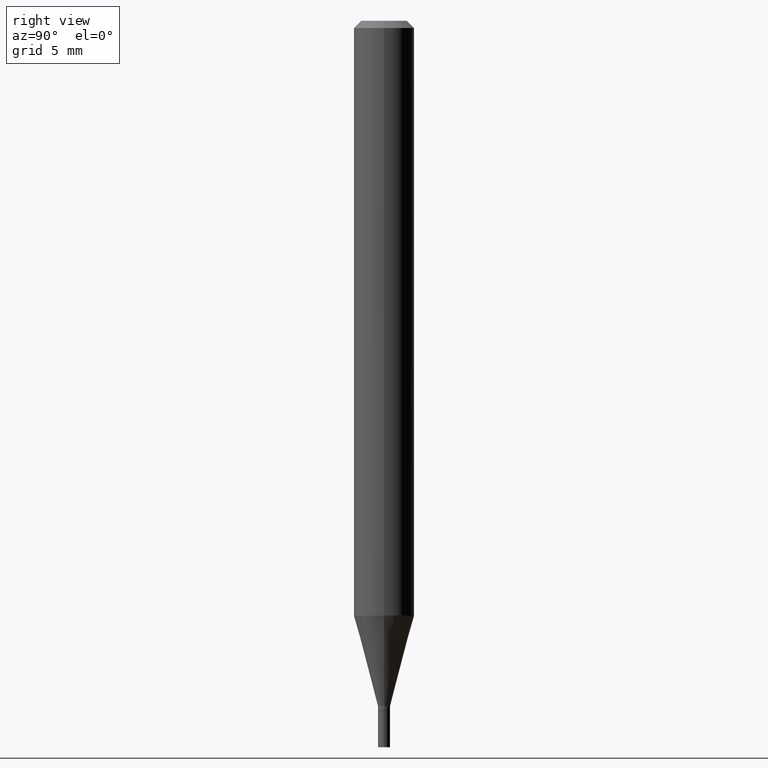
[diagram: clean part render]
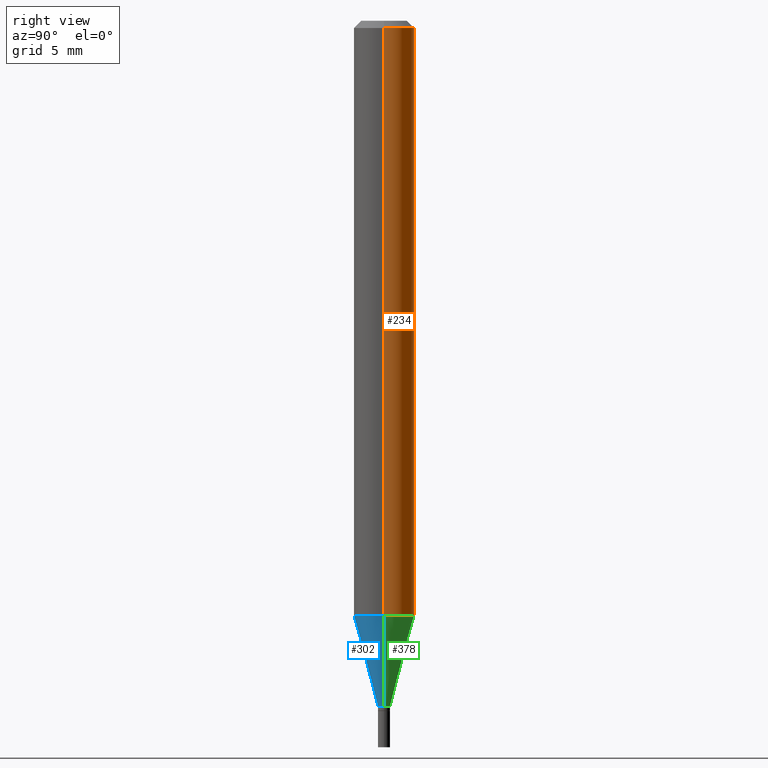
[diagram: same view with three faces highlighted in distinct colors, each labeled with its STEP entity id]
A machine part, right view with three faces highlighted in distinct colors.
Their STEP definitions:

[orange] entity #234 — the highlighted cylindrical surface (edge-blend (fillet) strip) has radius 1.5875 mm, axis along (-0, 0, 1).
#19 = ORIENTED_EDGE ( 'NONE', *, *, #243, .F. ) ;
#26 = LINE ( 'NONE', #126, #421 ) ;
#34 = DIRECTION ( 'NONE',  ( 1.000000000000000000, -6.982962677686266711E-15, 4.876176775795935793E-29 ) ) ;
#43 = DIRECTION ( 'NONE',  ( 1.000000000000000000, -6.982962677686262766E-15, 0.000000000000000000 ) ) ;
#47 = FACE_OUTER_BOUND ( 'NONE', #96, .T. ) ;
#51 = CARTESIAN_POINT ( 'NONE',  ( -0.06250000000000000000, -1.726560303666755986E-15, -0.01499999999999999944 ) ) ;
#68 = CARTESIAN_POINT ( 'NONE',  ( -0.06250000000000001388, -3.844837597100926719E-15, -1.228397459621556109 ) ) ;
#76 = VERTEX_POINT ( 'NONE', #51 ) ;
#77 = CYLINDRICAL_SURFACE ( 'NONE', #93, 0.06250000000000000000 ) ;
#80 = CIRCLE ( 'NONE', #397, 0.06250000000000000000 ) ;
#86 = ORIENTED_EDGE ( 'NONE', *, *, #188, .T. ) ;
#93 = AXIS2_PLACEMENT_3D ( 'NONE', #343, #213, #34 ) ;
#96 = EDGE_LOOP ( 'NONE', ( #334, #86, #19, #392 ) ) ;
#105 = DIRECTION ( 'NONE',  ( 1.000000000000000000, -6.982962677686266711E-15, 0.000000000000000000 ) ) ;
#126 = CARTESIAN_POINT ( 'NONE',  ( 0.06250000000000000000, -4.364351673553916694E-16, 3.047610484872459871E-30 ) ) ;
#132 = CARTESIAN_POINT ( 'NONE',  ( 3.668203209277705088E-31, -5.237222008264718399E-17, -0.01499999999999999944 ) ) ;
#138 = DIRECTION ( 'NONE',  ( -2.445468806185136877E-29, 3.491481338843145188E-15, 1.000000000000000000 ) ) ;
#161 = AXIS2_PLACEMENT_3D ( 'NONE', #254, #401, #43 ) ;
#188 = EDGE_CURVE ( 'NONE', #258, #76, #370, .T. ) ;
#213 = DIRECTION ( 'NONE',  ( -2.445468806185136597E-29, 3.491481338843145583E-15, 1.000000000000000000 ) ) ;
#234 = ADVANCED_FACE ( 'NONE', ( #47 ), #77, .T. ) ;
#243 = EDGE_CURVE ( 'NONE', #345, #76, #80, .T. ) ;
#254 = CARTESIAN_POINT ( 'NONE',  ( 3.004007669101581496E-29, -4.288926806950990124E-15, -1.228397459621556109 ) ) ;
#255 = EDGE_CURVE ( 'NONE', #338, #258, #379, .T. ) ;
#258 = VERTEX_POINT ( 'NONE', #68 ) ;
#323 = CARTESIAN_POINT ( 'NONE',  ( 0.06250000000000000000, -4.888073874380388472E-16, -0.01499999999999999944 ) ) ;
#334 = ORIENTED_EDGE ( 'NONE', *, *, #255, .T. ) ;
#338 = VERTEX_POINT ( 'NONE', #352 ) ;
#341 = VECTOR ( 'NONE', #138, 39.37007874015748143 ) ;
#343 = CARTESIAN_POINT ( 'NONE',  ( 0.000000000000000000, 0.000000000000000000, 0.000000000000000000 ) ) ;
#345 = VERTEX_POINT ( 'NONE', #323 ) ;
#352 = CARTESIAN_POINT ( 'NONE',  ( 0.06250000000000001388, -4.725361974306381794E-15, -1.228397459621556109 ) ) ;
#355 = DIRECTION ( 'NONE',  ( -2.445468806185136877E-29, 3.491481338843145188E-15, 1.000000000000000000 ) ) ;
#370 = LINE ( 'NONE', #435, #341 ) ;
#379 = CIRCLE ( 'NONE', #161, 0.06250000000000000000 ) ;
#381 = EDGE_CURVE ( 'NONE', #338, #345, #26, .T. ) ;
#392 = ORIENTED_EDGE ( 'NONE', *, *, #381, .F. ) ;
#397 = AXIS2_PLACEMENT_3D ( 'NONE', #132, #405, #105 ) ;
#401 = DIRECTION ( 'NONE',  ( -2.445468806185136597E-29, 3.491481338843145583E-15, 1.000000000000000000 ) ) ;
#405 = DIRECTION ( 'NONE',  ( -2.445468806185136597E-29, 3.491481338843145583E-15, 1.000000000000000000 ) ) ;
#421 = VECTOR ( 'NONE', #355, 39.37007874015748143 ) ;
#435 = CARTESIAN_POINT ( 'NONE',  ( -0.06250000000000000000, 4.440892098500626162E-16, -3.074334431409316114E-30 ) ) ;

[blue] entity #302 — the highlighted conical surface has half-angle 15 deg.
#17 = EDGE_CURVE ( 'NONE', #154, #258, #155, .T. ) ;
#55 = DIRECTION ( 'NONE',  ( -2.445468806185136597E-29, 3.491481338843145583E-15, 1.000000000000000000 ) ) ;
#68 = CARTESIAN_POINT ( 'NONE',  ( -0.06250000000000001388, -3.844837597100926719E-15, -1.228397459621556109 ) ) ;
#73 = CARTESIAN_POINT ( 'NONE',  ( 3.460338360751968441E-29, -4.940446094463050737E-15, -1.415000000000000036 ) ) ;
#92 = CARTESIAN_POINT ( 'NONE',  ( 3.004007669101581496E-29, -4.288926806950990124E-15, -1.228397459621556109 ) ) ;
#115 = AXIS2_PLACEMENT_3D ( 'NONE', #92, #457, #124 ) ;
#124 = DIRECTION ( 'NONE',  ( 1.000000000000000000, -6.982962677686262766E-15, 0.000000000000000000 ) ) ;
#134 = EDGE_LOOP ( 'NONE', ( #273, #250, #199, #207 ) ) ;
#141 = AXIS2_PLACEMENT_3D ( 'NONE', #246, #391, #195 ) ;
#145 = CARTESIAN_POINT ( 'NONE',  ( -0.01249999999999992437, -4.348232924796983019E-15, -1.415000000000000036 ) ) ;
#149 = VERTEX_POINT ( 'NONE', #339 ) ;
#154 = VERTEX_POINT ( 'NONE', #145 ) ;
#155 = LINE ( 'NONE', #385, #299 ) ;
#157 = CIRCLE ( 'NONE', #115, 0.06250000000000000000 ) ;
#159 = DIRECTION ( 'NONE',  ( -0.2588190451025211281, 5.211531920934548675E-15, 0.9659258262890682012 ) ) ;
#195 = DIRECTION ( 'NONE',  ( 1.000000000000000000, -6.982962677686258822E-15, 0.000000000000000000 ) ) ;
#199 = ORIENTED_EDGE ( 'NONE', *, *, #316, .T. ) ;
#207 = ORIENTED_EDGE ( 'NONE', *, *, #417, .F. ) ;
#216 = LINE ( 'NONE', #438, #330 ) ;
#227 = CIRCLE ( 'NONE', #141, 0.01249999999999992437 ) ;
#246 = CARTESIAN_POINT ( 'NONE',  ( 3.460338360751968441E-29, -4.940446094463050737E-15, -1.415000000000000036 ) ) ;
#250 = ORIENTED_EDGE ( 'NONE', *, *, #450, .T. ) ;
#258 = VERTEX_POINT ( 'NONE', #68 ) ;
#273 = ORIENTED_EDGE ( 'NONE', *, *, #17, .F. ) ;
#289 = AXIS2_PLACEMENT_3D ( 'NONE', #73, #55, #318 ) ;
#297 = FACE_OUTER_BOUND ( 'NONE', #134, .T. ) ;
#299 = VECTOR ( 'NONE', #159, 39.37007874015748143 ) ;
#302 = ADVANCED_FACE ( 'NONE', ( #297 ), #403, .T. ) ;
#316 = EDGE_CURVE ( 'NONE', #149, #338, #216, .T. ) ;
#318 = DIRECTION ( 'NONE',  ( 1.000000000000000000, -6.982962677686258822E-15, 0.000000000000000000 ) ) ;
#330 = VECTOR ( 'NONE', #356, 39.37007874015748143 ) ;
#338 = VERTEX_POINT ( 'NONE', #352 ) ;
#339 = CARTESIAN_POINT ( 'NONE',  ( 0.01249999999999992437, -5.027733127934128282E-15, -1.415000000000000036 ) ) ;
#352 = CARTESIAN_POINT ( 'NONE',  ( 0.06250000000000001388, -4.725361974306381794E-15, -1.228397459621556109 ) ) ;
#356 = DIRECTION ( 'NONE',  ( 0.2588190451025211281, 1.565188264969623940E-15, 0.9659258262890682012 ) ) ;
#385 = CARTESIAN_POINT ( 'NONE',  ( -0.01249999999999992437, -4.851628252493038529E-15, -1.415000000000000036 ) ) ;
#391 = DIRECTION ( 'NONE',  ( -2.445468806185136597E-29, 3.491481338843145583E-15, 1.000000000000000000 ) ) ;
#403 = CONICAL_SURFACE ( 'NONE', #289, 0.01249999999999992437, 0.2617993877991497964 ) ;
#417 = EDGE_CURVE ( 'NONE', #258, #338, #157, .T. ) ;
#438 = CARTESIAN_POINT ( 'NONE',  ( 0.01249999999999992437, -5.027733127934128282E-15, -1.415000000000000036 ) ) ;
#450 = EDGE_CURVE ( 'NONE', #154, #149, #227, .T. ) ;
#457 = DIRECTION ( 'NONE',  ( -2.445468806185136597E-29, 3.491481338843145583E-15, 1.000000000000000000 ) ) ;

[green] entity #378 — the highlighted conical surface has half-angle 15 deg.
#6 = EDGE_LOOP ( 'NONE', ( #271, #164, #304, #22 ) ) ;
#7 = DIRECTION ( 'NONE',  ( 1.000000000000000000, -6.982962677686258822E-15, 0.000000000000000000 ) ) ;
#17 = EDGE_CURVE ( 'NONE', #154, #258, #155, .T. ) ;
#22 = ORIENTED_EDGE ( 'NONE', *, *, #316, .F. ) ;
#23 = FACE_OUTER_BOUND ( 'NONE', #6, .T. ) ;
#25 = CIRCLE ( 'NONE', #192, 0.01249999999999992437 ) ;
#43 = DIRECTION ( 'NONE',  ( 1.000000000000000000, -6.982962677686262766E-15, 0.000000000000000000 ) ) ;
#56 = DIRECTION ( 'NONE',  ( -2.445468806185136597E-29, 3.491481338843145583E-15, 1.000000000000000000 ) ) ;
#68 = CARTESIAN_POINT ( 'NONE',  ( -0.06250000000000001388, -3.844837597100926719E-15, -1.228397459621556109 ) ) ;
#145 = CARTESIAN_POINT ( 'NONE',  ( -0.01249999999999992437, -4.348232924796983019E-15, -1.415000000000000036 ) ) ;
#149 = VERTEX_POINT ( 'NONE', #339 ) ;
#154 = VERTEX_POINT ( 'NONE', #145 ) ;
#155 = LINE ( 'NONE', #385, #299 ) ;
#159 = DIRECTION ( 'NONE',  ( -0.2588190451025211281, 5.211531920934548675E-15, 0.9659258262890682012 ) ) ;
#161 = AXIS2_PLACEMENT_3D ( 'NONE', #254, #401, #43 ) ;
#162 = EDGE_CURVE ( 'NONE', #149, #154, #25, .T. ) ;
#164 = ORIENTED_EDGE ( 'NONE', *, *, #17, .T. ) ;
#179 = CARTESIAN_POINT ( 'NONE',  ( 3.460338360751968441E-29, -4.940446094463050737E-15, -1.415000000000000036 ) ) ;
#190 = DIRECTION ( 'NONE',  ( 1.000000000000000000, -6.982962677686258822E-15, 0.000000000000000000 ) ) ;
#192 = AXIS2_PLACEMENT_3D ( 'NONE', #179, #331, #7 ) ;
#216 = LINE ( 'NONE', #438, #330 ) ;
#254 = CARTESIAN_POINT ( 'NONE',  ( 3.004007669101581496E-29, -4.288926806950990124E-15, -1.228397459621556109 ) ) ;
#255 = EDGE_CURVE ( 'NONE', #338, #258, #379, .T. ) ;
#257 = AXIS2_PLACEMENT_3D ( 'NONE', #386, #56, #190 ) ;
#258 = VERTEX_POINT ( 'NONE', #68 ) ;
#271 = ORIENTED_EDGE ( 'NONE', *, *, #162, .T. ) ;
#299 = VECTOR ( 'NONE', #159, 39.37007874015748143 ) ;
#304 = ORIENTED_EDGE ( 'NONE', *, *, #255, .F. ) ;
#316 = EDGE_CURVE ( 'NONE', #149, #338, #216, .T. ) ;
#330 = VECTOR ( 'NONE', #356, 39.37007874015748143 ) ;
#331 = DIRECTION ( 'NONE',  ( -2.445468806185136597E-29, 3.491481338843145583E-15, 1.000000000000000000 ) ) ;
#338 = VERTEX_POINT ( 'NONE', #352 ) ;
#339 = CARTESIAN_POINT ( 'NONE',  ( 0.01249999999999992437, -5.027733127934128282E-15, -1.415000000000000036 ) ) ;
#352 = CARTESIAN_POINT ( 'NONE',  ( 0.06250000000000001388, -4.725361974306381794E-15, -1.228397459621556109 ) ) ;
#356 = DIRECTION ( 'NONE',  ( 0.2588190451025211281, 1.565188264969623940E-15, 0.9659258262890682012 ) ) ;
#378 = ADVANCED_FACE ( 'NONE', ( #23 ), #459, .T. ) ;
#379 = CIRCLE ( 'NONE', #161, 0.06250000000000000000 ) ;
#385 = CARTESIAN_POINT ( 'NONE',  ( -0.01249999999999992437, -4.851628252493038529E-15, -1.415000000000000036 ) ) ;
#386 = CARTESIAN_POINT ( 'NONE',  ( 3.460338360751968441E-29, -4.940446094463050737E-15, -1.415000000000000036 ) ) ;
#401 = DIRECTION ( 'NONE',  ( -2.445468806185136597E-29, 3.491481338843145583E-15, 1.000000000000000000 ) ) ;
#438 = CARTESIAN_POINT ( 'NONE',  ( 0.01249999999999992437, -5.027733127934128282E-15, -1.415000000000000036 ) ) ;
#459 = CONICAL_SURFACE ( 'NONE', #257, 0.01249999999999992437, 0.2617993877991497964 ) ;